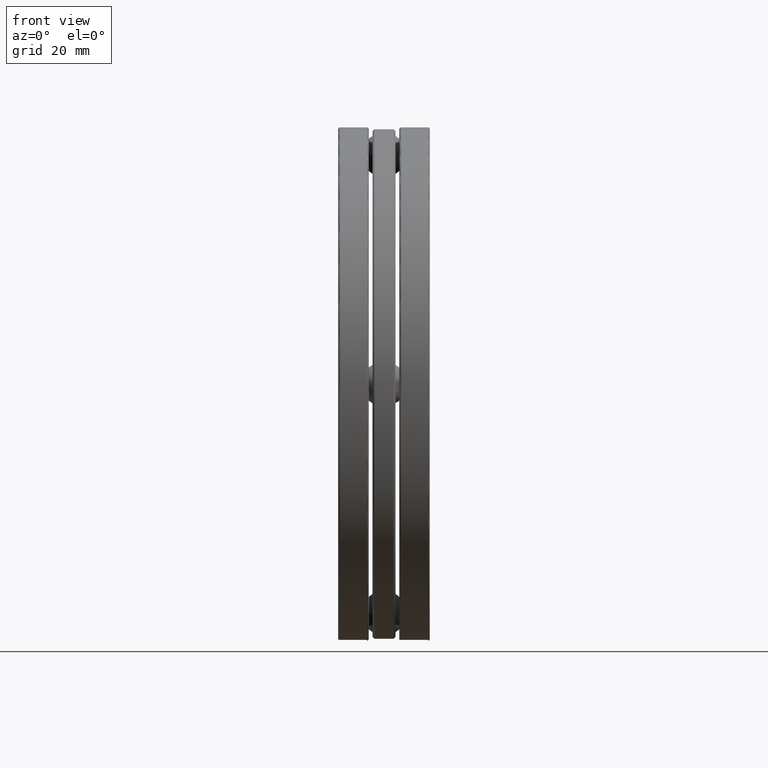
[diagram: clean part render]
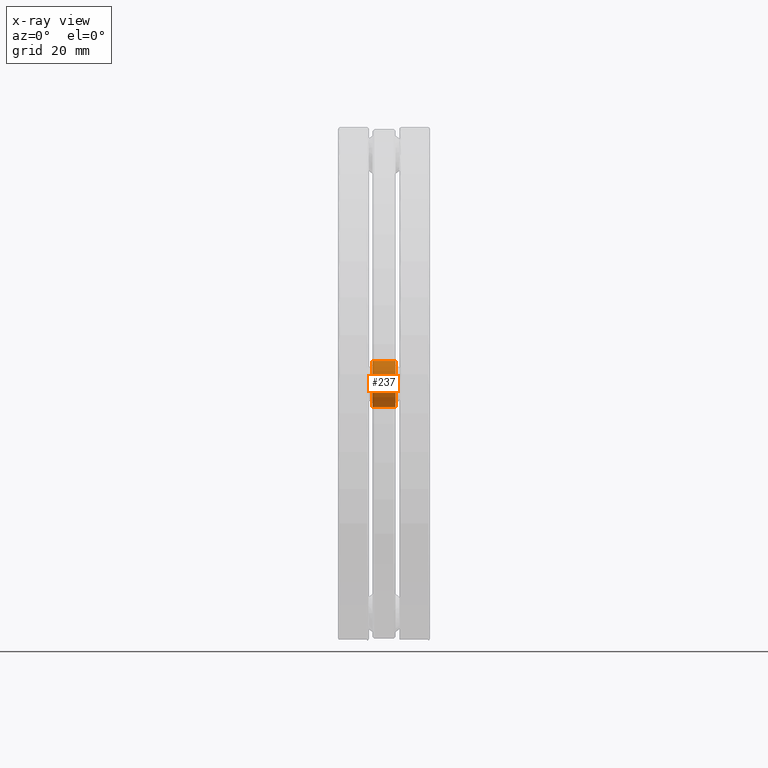
[diagram: x-ray — body ghosted, one internal face saturated and labeled with its STEP entity id]
A machine part, front view, then the same camera in x-ray: the body is ghosted and one INTERNAL B-rep face — a face not visible from any outside direction — is saturated and labeled: STEP entity #237.
In plain terms, the highlighted cylindrical surface (bore or boss wall) has radius 6.2738 mm, axis along (1, -0, -0).
Its self-contained STEP definition (entity closure, byte-faithful):
#62 = VERTEX_POINT ( 'NONE', #754 ) ;
#109 = CARTESIAN_POINT ( 'NONE',  ( -0.1229999999999999600, 2.460749999999999500, -0.2470000000000006100 ) ) ;
#175 = DIRECTION ( 'NONE',  ( 0.0000000000000000000, 0.0000000000000000000, -1.000000000000000000 ) ) ;
#200 = EDGE_CURVE ( 'NONE', #62, #62, #307, .T. ) ;
#237 = ADVANCED_FACE ( 'NONE', ( #437, #313 ), #789, .F. ) ;
#238 = CARTESIAN_POINT ( 'NONE',  ( 0.1230000000000000100, 2.460749999999999500, 0.0000000000000000000 ) ) ;
#251 = EDGE_CURVE ( 'NONE', #718, #718, #291, .T. ) ;
#291 = CIRCLE ( 'NONE', #824, 0.2470000000000006100 ) ;
#305 = DIRECTION ( 'NONE',  ( 0.0000000000000000000, 0.0000000000000000000, -1.000000000000000000 ) ) ;
#307 = CIRCLE ( 'NONE', #322, 0.2470000000000006100 ) ;
#313 = FACE_OUTER_BOUND ( 'NONE', #439, .T. ) ;
#322 = AXIS2_PLACEMENT_3D ( 'NONE', #238, #672, #305 ) ;
#357 = EDGE_LOOP ( 'NONE', ( #464 ) ) ;
#362 = CARTESIAN_POINT ( 'NONE',  ( -0.1229999999999999600, 2.460749999999999500, 0.0000000000000000000 ) ) ;
#437 = FACE_OUTER_BOUND ( 'NONE', #357, .T. ) ;
#439 = EDGE_LOOP ( 'NONE', ( #807 ) ) ;
#464 = ORIENTED_EDGE ( 'NONE', *, *, #200, .T. ) ;
#491 = DIRECTION ( 'NONE',  ( 1.000000000000000000, -0.0000000000000000000, -0.0000000000000000000 ) ) ;
#546 = DIRECTION ( 'NONE',  ( 0.0000000000000000000, 0.0000000000000000000, -1.000000000000000000 ) ) ;
#672 = DIRECTION ( 'NONE',  ( 1.000000000000000000, -0.0000000000000000000, 0.0000000000000000000 ) ) ;
#682 = DIRECTION ( 'NONE',  ( -1.000000000000000000, -0.0000000000000000000, -0.0000000000000000000 ) ) ;
#718 = VERTEX_POINT ( 'NONE', #109 ) ;
#753 = CARTESIAN_POINT ( 'NONE',  ( -0.4920393700787401000, 2.460749999999999500, 0.0000000000000000000 ) ) ;
#754 = CARTESIAN_POINT ( 'NONE',  ( 0.1230000000000000100, 2.460749999999999500, -0.2470000000000006100 ) ) ;
#781 = AXIS2_PLACEMENT_3D ( 'NONE', #753, #491, #546 ) ;
#789 = CYLINDRICAL_SURFACE ( 'NONE', #781, 0.2470000000000006100 ) ;
#807 = ORIENTED_EDGE ( 'NONE', *, *, #251, .T. ) ;
#824 = AXIS2_PLACEMENT_3D ( 'NONE', #362, #682, #175 ) ;